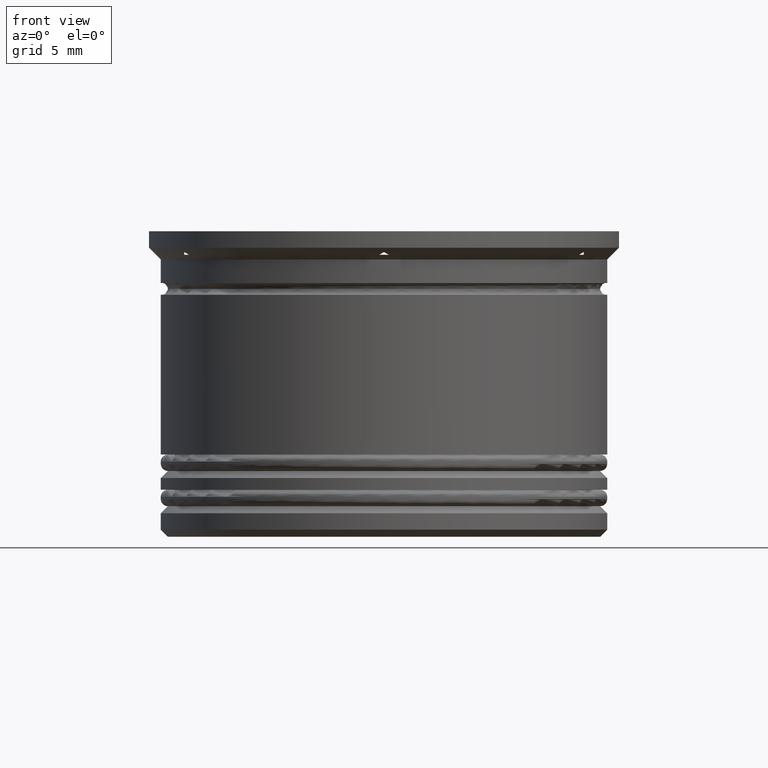
[diagram: clean part render]
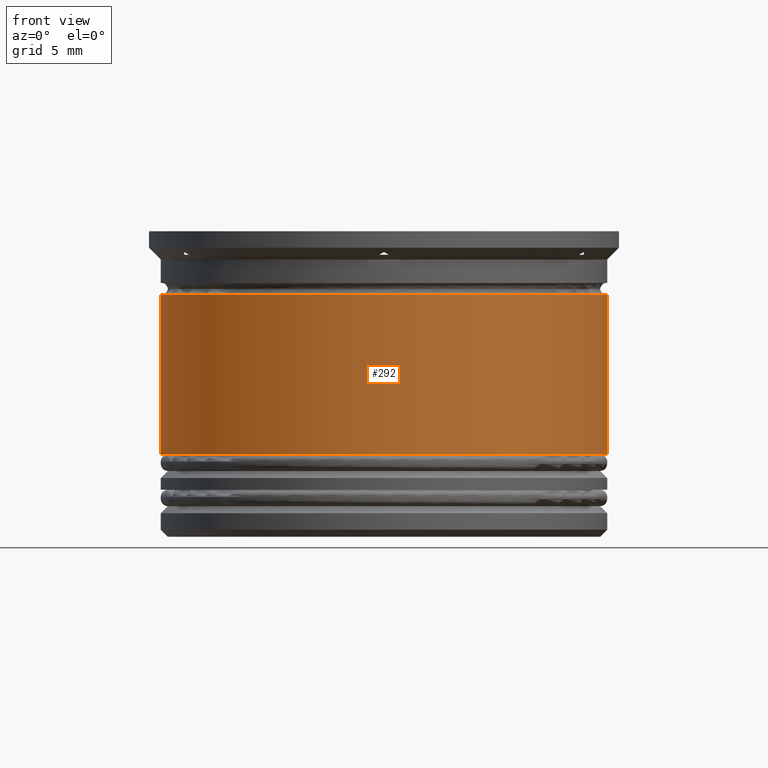
[diagram: same view with one face highlighted and labeled with its STEP entity id]
A machine part, front view. The second image highlights one B-rep face of the part: STEP entity #292.
In plain terms, the highlighted cylindrical surface (partial cylindrical patch) has radius 9.5 mm, axis along (-0, -0, 1).
Its self-contained STEP definition (entity closure, byte-faithful):
#22 = DIRECTION ( 'NONE',  ( 1.000000000000000000, 0.000000000000000000, 0.000000000000000000 ) ) ;
#35 = DIRECTION ( 'NONE',  ( -0.000000000000000000, -0.000000000000000000, 1.000000000000000000 ) ) ;
#83 = ORIENTED_EDGE ( 'NONE', *, *, #1774, .T. ) ;
#120 = CIRCLE ( 'NONE', #1766, 9.500000000000001776 ) ;
#126 = ORIENTED_EDGE ( 'NONE', *, *, #1019, .F. ) ;
#292 = ADVANCED_FACE ( 'NONE', ( #372 ), #1399, .T. ) ;
#372 = FACE_OUTER_BOUND ( 'NONE', #1838, .T. ) ;
#573 = VERTEX_POINT ( 'NONE', #1500 ) ;
#617 = DIRECTION ( 'NONE',  ( -0.000000000000000000, -0.000000000000000000, 1.000000000000000000 ) ) ;
#630 = CARTESIAN_POINT ( 'NONE',  ( 9.500000000000001776, 0.000000000000000000, -9.500000000000000000 ) ) ;
#784 = VERTEX_POINT ( 'NONE', #1743 ) ;
#808 = CARTESIAN_POINT ( 'NONE',  ( -9.500000000000000000, 1.163414459189985485E-15, 0.000000000000000000 ) ) ;
#835 = EDGE_CURVE ( 'NONE', #1961, #573, #1968, .T. ) ;
#855 = DIRECTION ( 'NONE',  ( -0.000000000000000000, -0.000000000000000000, 1.000000000000000000 ) ) ;
#868 = DIRECTION ( 'NONE',  ( 1.000000000000000000, 0.000000000000000000, 0.000000000000000000 ) ) ;
#1019 = EDGE_CURVE ( 'NONE', #1590, #784, #2016, .T. ) ;
#1114 = CARTESIAN_POINT ( 'NONE',  ( 0.000000000000000000, 0.000000000000000000, -9.500000000000000000 ) ) ;
#1135 = VECTOR ( 'NONE', #1143, 1000.000000000000000 ) ;
#1143 = DIRECTION ( 'NONE',  ( -0.000000000000000000, -0.000000000000000000, 1.000000000000000000 ) ) ;
#1232 = ORIENTED_EDGE ( 'NONE', *, *, #1981, .F. ) ;
#1242 = DIRECTION ( 'NONE',  ( -0.000000000000000000, -0.000000000000000000, 1.000000000000000000 ) ) ;
#1321 = AXIS2_PLACEMENT_3D ( 'NONE', #1863, #855, #22 ) ;
#1399 = CYLINDRICAL_SURFACE ( 'NONE', #1694, 9.500000000000000000 ) ;
#1500 = CARTESIAN_POINT ( 'NONE',  ( 9.499999999999998224, 0.000000000000000000, -2.700000000000000178 ) ) ;
#1590 = VERTEX_POINT ( 'NONE', #1826 ) ;
#1694 = AXIS2_PLACEMENT_3D ( 'NONE', #2040, #35, #868 ) ;
#1743 = CARTESIAN_POINT ( 'NONE',  ( -9.499999999999998224, 1.163414459189985485E-15, -2.700000000000000178 ) ) ;
#1766 = AXIS2_PLACEMENT_3D ( 'NONE', #1114, #1242, #1772 ) ;
#1772 = DIRECTION ( 'NONE',  ( 1.000000000000000000, 0.000000000000000000, 0.000000000000000000 ) ) ;
#1774 = EDGE_CURVE ( 'NONE', #1590, #1961, #120, .T. ) ;
#1826 = CARTESIAN_POINT ( 'NONE',  ( -9.500000000000001776, 1.163414459189985682E-15, -9.500000000000000000 ) ) ;
#1830 = VECTOR ( 'NONE', #617, 1000.000000000000000 ) ;
#1838 = EDGE_LOOP ( 'NONE', ( #126, #83, #1840, #1232 ) ) ;
#1840 = ORIENTED_EDGE ( 'NONE', *, *, #835, .T. ) ;
#1863 = CARTESIAN_POINT ( 'NONE',  ( 0.000000000000000000, 0.000000000000000000, -2.700000000000000178 ) ) ;
#1864 = CIRCLE ( 'NONE', #1321, 9.499999999999998224 ) ;
#1961 = VERTEX_POINT ( 'NONE', #630 ) ;
#1968 = LINE ( 'NONE', #2119, #1830 ) ;
#1981 = EDGE_CURVE ( 'NONE', #784, #573, #1864, .T. ) ;
#2016 = LINE ( 'NONE', #808, #1135 ) ;
#2040 = CARTESIAN_POINT ( 'NONE',  ( 0.000000000000000000, 0.000000000000000000, 0.000000000000000000 ) ) ;
#2119 = CARTESIAN_POINT ( 'NONE',  ( 9.500000000000000000, 0.000000000000000000, 0.000000000000000000 ) ) ;